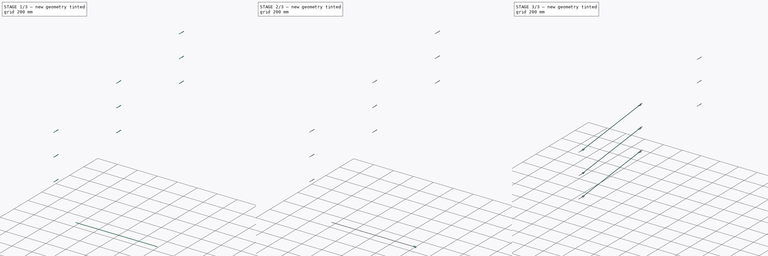
[diagram: build sequence overview — one tinted view per stage of 3, left to right]
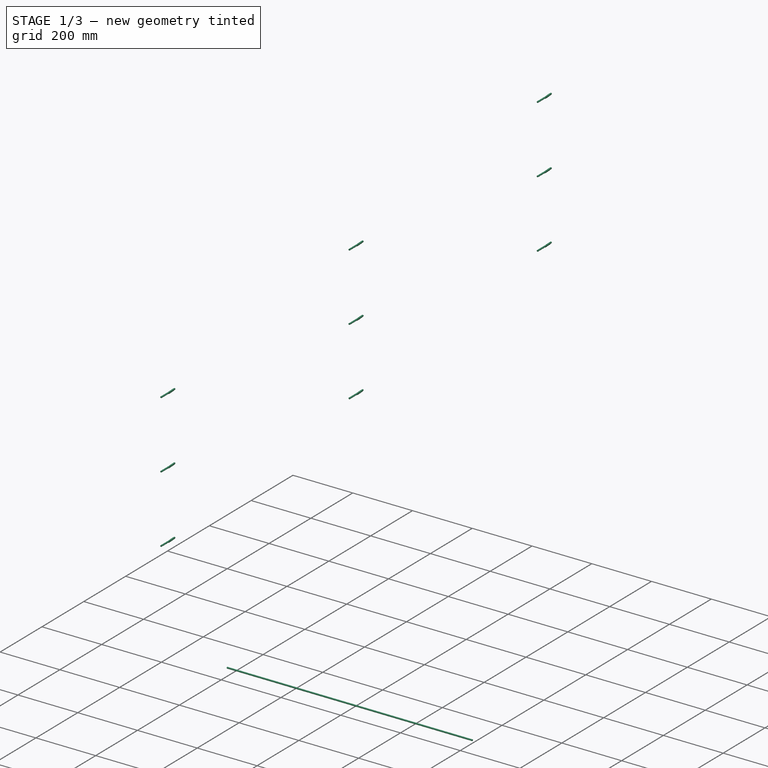
[diagram: stage 1 of 3 — iso view after this stage's code; geometry added in this stage tinted green]
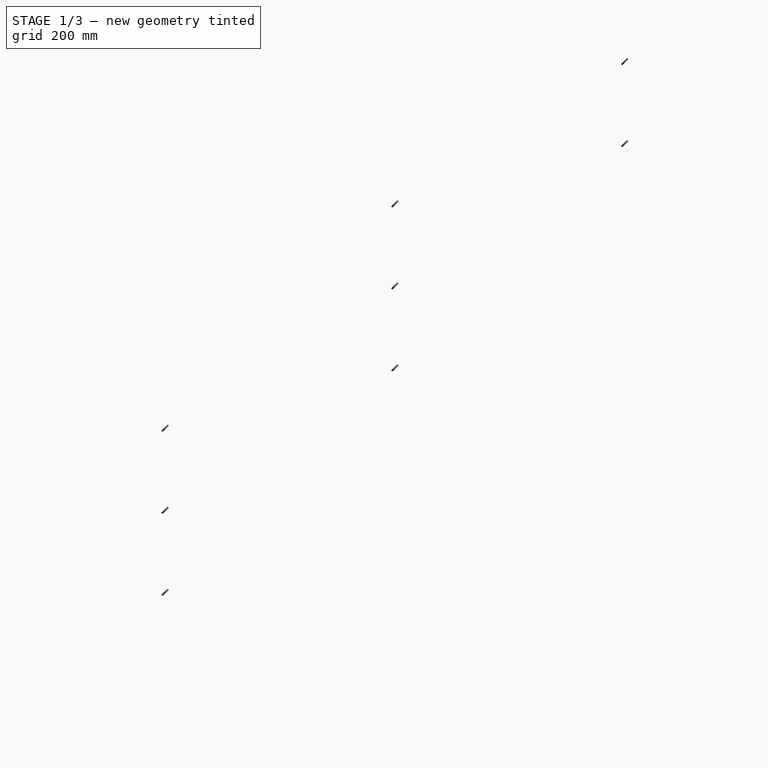
[diagram: stage 1 of 3 — front view after this stage's code; geometry added in this stage tinted green]
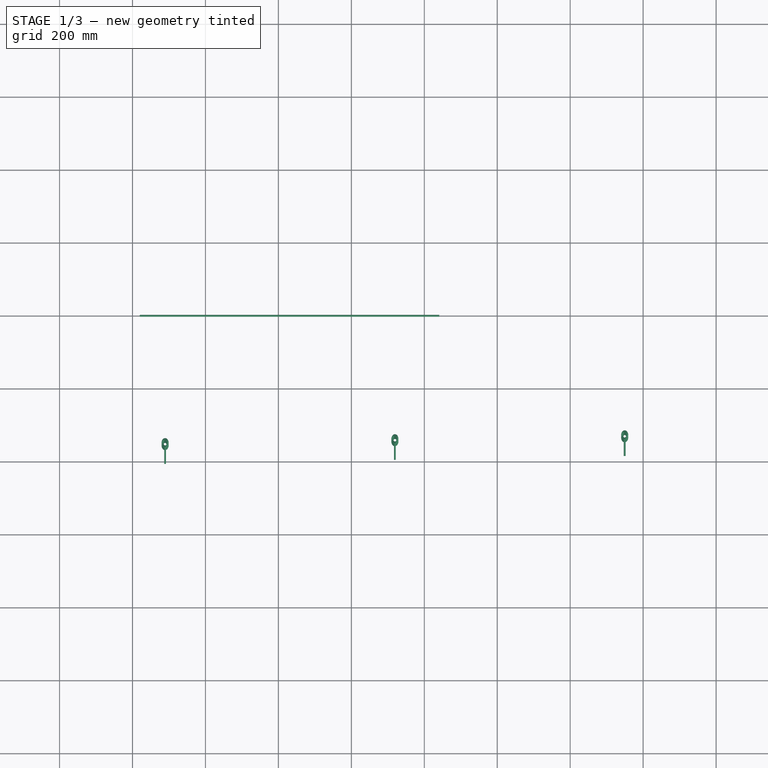
[diagram: stage 1 of 3 — top view after this stage's code; geometry added in this stage tinted green]
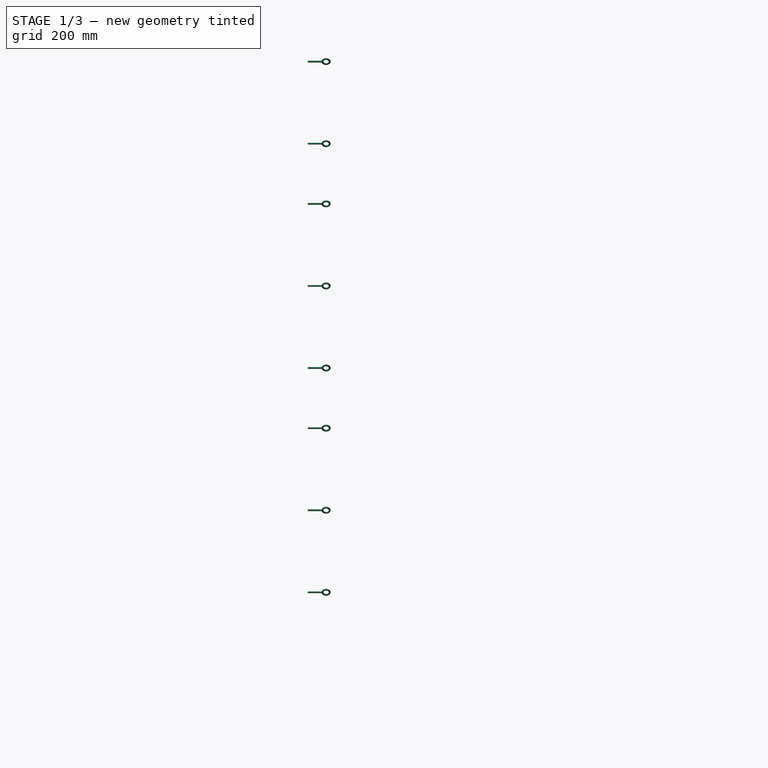
[diagram: stage 1 of 3 — right view after this stage's code; geometry added in this stage tinted green]
FCSTD DOCUMENT  (FreeCAD 0.17R10993 (Git))
Label: ropes
License: All rights reserved
LicenseURL: http://en.wikipedia.org/wiki/All_rights_reserved
objects: Sketcher::SketchObject×3, Part::FeaturePython×3, Part::Feature×2, App::DocumentObjectGroup×2, Part::Sweep×1, Part::Extrusion×1, Part::Compound×1
note: 11 computed .brp shape members not serialized (recipe doc carries the construction recipe); baked Part::Feature solids carry a one-line shape summary decoded from their .brp

FEATURE [Part::Extrusion] Extrude
  Base = -> Sketch
  Dir = (1,0,0)
  DirMode = 0
  FaceMakerClass = Part::FaceMakerBullseye
  LengthFwd = 821
  LengthRev = 0
  Solid = true
  Symmetric = false
  expr: Dir.x = 1
FEATURE [Part::FeaturePython] railing_eyelet_01  # a2plus imported part (geometry in sourceFile) (typed FeaturePython)
  fixedPosition = true
  sourceFile = railing_eyelet.fcstd
  timeLastImport = 1.49443e+09
  updateColors = true
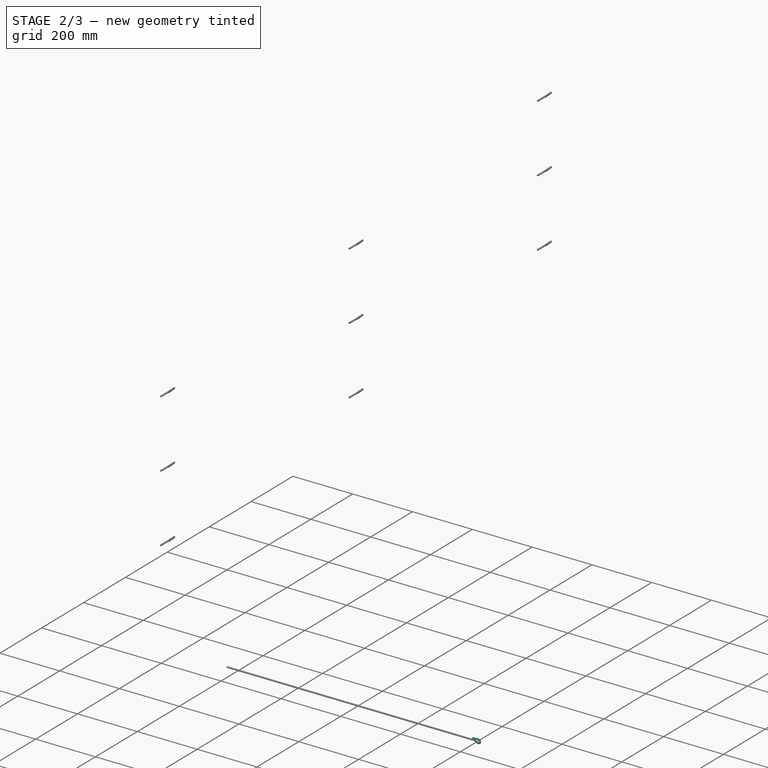
[diagram: stage 2 of 3 — iso view after this stage's code; geometry added in this stage tinted green]
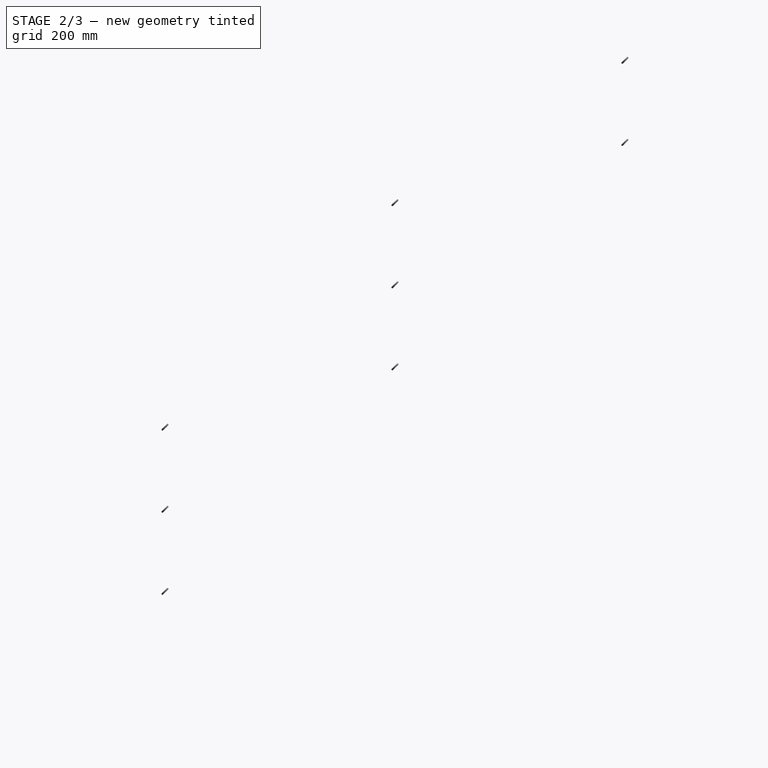
[diagram: stage 2 of 3 — front view after this stage's code; geometry added in this stage tinted green]
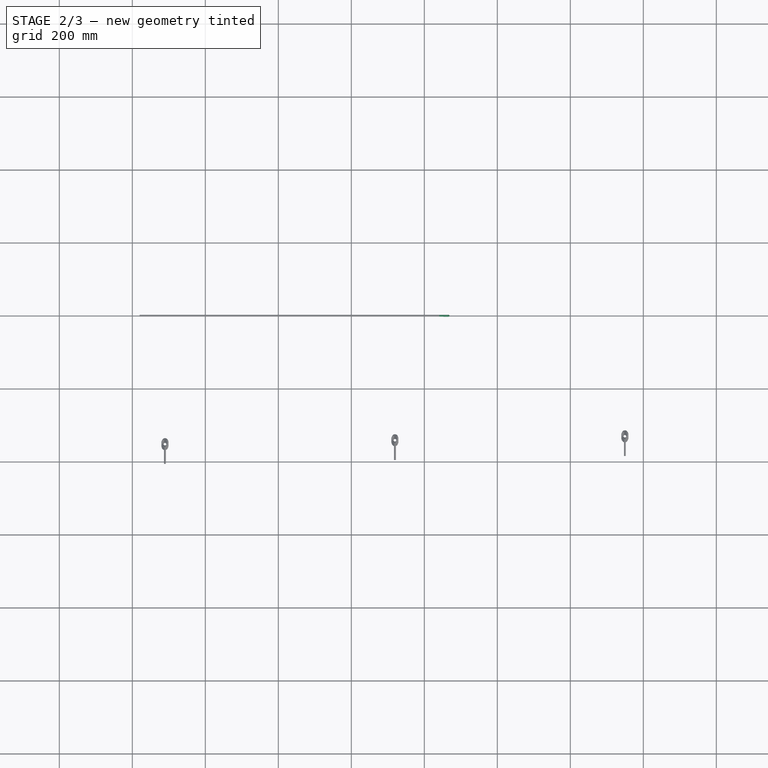
[diagram: stage 2 of 3 — top view after this stage's code; geometry added in this stage tinted green]
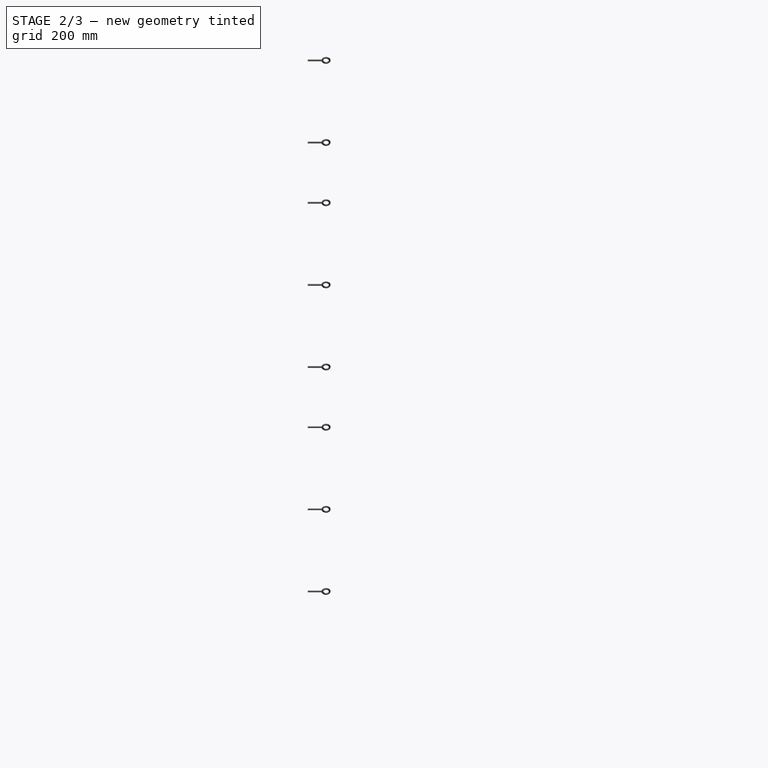
[diagram: stage 2 of 3 — right view after this stage's code; geometry added in this stage tinted green]
FEATURE [Sketcher::SketchObject] Sketch001
  Placement = pos=(20,0,0) rot=(0,-1,0;1.5708rad)
  sketch-geometry (1):
    g0: Circle CenterX=5 CenterY=0 CenterZ=0 NormalX=0 NormalY=0 NormalZ=1 Radius=2.5
  constraints (3):
    c: PointOnObject(g0,g-1)
    c: DistanceX(g-1,g0) = 5
    c: Radius(g0) = 2.5
FEATURE [Sketcher::SketchObject] Sketch
  Placement = pos=(20,0,0) rot=(0,-1,0;1.5708rad)
  sketch-geometry (1):
    g0: Circle CenterX=0 CenterY=0 CenterZ=0 NormalX=0 NormalY=0 NormalZ=1 Radius=2.5
  constraints (2):
    c: Radius(g0) = 2.5
    c: Coincident(g0,g-1)
FEATURE [Sketcher::SketchObject] Sketch002
  Placement = pos=(20,0,0) rot=(0.57735,-0.57735,0.57735;2.0944rad)
  sketch-geometry (43):
    g0: LineSegment [constr] StartX=3.375 StartY=25.8457 StartZ=0 EndX=-3.375 EndY=25.8457 EndZ=0
    g1: LineSegment [constr] StartX=-3.375 StartY=25.8457 StartZ=0 EndX=-6.75 EndY=20 EndZ=0
    g2: LineSegment [constr] StartX=-6.75 StartY=20 StartZ=0 EndX=-3.375 EndY=14.1543 EndZ=0
    g3: LineSegment [constr] StartX=-3.375 StartY=14.1543 StartZ=0 EndX=3.375 EndY=14.1543 EndZ=0
    g4: LineSegment [constr] StartX=3.375 StartY=14.1543 StartZ=0 EndX=6.75 EndY=20 EndZ=0
    g5: LineSegment [constr] StartX=6.75 StartY=20 StartZ=0 EndX=3.375 EndY=25.8457 EndZ=0
    g6: Circle [constr] CenterX=0 CenterY=20 CenterZ=0 NormalX=0 NormalY=0 NormalZ=1 Radius=6.75
    g7: Circle [constr] CenterX=-3.375 CenterY=14.1543 CenterZ=0 NormalX=0 NormalY=0 NormalZ=1 Radius=1
    g8: Circle [constr] CenterX=-6.75 CenterY=20 CenterZ=0 NormalX=0 NormalY=0 NormalZ=1 Radius=1
    g9: Circle [constr] CenterX=-3.375 CenterY=25.8457 CenterZ=0 NormalX=0 NormalY=0 NormalZ=1 Radius=1
    g10: Circle [constr] CenterX=3.375 CenterY=25.8457 CenterZ=0 NormalX=0 NormalY=0 NormalZ=1 Radius=1
    g11: Circle [constr] CenterX=6.75 CenterY=20 CenterZ=0 NormalX=0 NormalY=0 NormalZ=1 Radius=1
    g12: Circle [constr] CenterX=3.375 CenterY=14.1543 CenterZ=0 NormalX=0 NormalY=0 NormalZ=1 Radius=1
    g13: LineSegment StartX=0 StartY=5 StartZ=0 EndX=0 EndY=0 EndZ=0
    g14: LineSegment StartX=5 StartY=5 StartZ=0 EndX=5 EndY=0 EndZ=0
    g15: LineSegment [constr] StartX=0 StartY=5 StartZ=0 EndX=0 EndY=10 EndZ=0
    g16: LineSegment [constr] StartX=5 StartY=5 StartZ=0 EndX=5 EndY=10 EndZ=0
    g17: Circle [constr] CenterX=0 CenterY=10 CenterZ=0 NormalX=0 NormalY=0 NormalZ=1 Radius=3.32889e-07
    g18: Circle [constr] CenterX=-3.375 CenterY=14.1543 CenterZ=0 NormalX=0 NormalY=0 NormalZ=1 Radius=3.32889e-07
    g19: Circle [constr] CenterX=-6.75 CenterY=20 CenterZ=0 NormalX=0 NormalY=0 NormalZ=1 Radius=3.32889e-07
    g20: Circle [constr] CenterX=-3.375 CenterY=25.8457 CenterZ=0 NormalX=0 NormalY=0 NormalZ=1 Radius=3.32889e-07
    g21: Circle [constr] CenterX=3.375 CenterY=25.8457 CenterZ=0 NormalX=0 NormalY=0 NormalZ=1 Radius=3.32889e-07
    g22: Circle [constr] CenterX=6.75 CenterY=20 CenterZ=0 NormalX=0 NormalY=0 NormalZ=1 Radius=3.32889e-07
    g23: Circle [constr] CenterX=5 CenterY=10 CenterZ=0 NormalX=0 NormalY=0 NormalZ=1 Radius=3.32889e-07
    g24-g33: Circle [constr] x10 (B-spline internal-alignment scaffolding for g34; pole/knot coordinates omitted)
    g34: BSplineCurve PolesCount=10 KnotsCount=8 Degree=3 IsPeriodic=0
    g35-g42: GeomPoint [constr] x8 (B-spline internal-alignment scaffolding for g34; pole/knot coordinates omitted)
  constraints (57):
    c: Coincident(g0,g1)
    c: Coincident(g1,g2)
    c: Coincident(g2,g3)
    c: Coincident(g3,g4)
    c: Coincident(g4,g5)
    c: Coincident(g5,g0)
    c: Equal(g0, g1-g5) x5
    c: PointOnObject(g0,g6)
    c: PointOnObject(g1,g6)
    c: PointOnObject(g2,g6)
    c: PointOnObject(g4,g6)
    c: PointOnObject(g5,g6)
    c: Coincident(g7,g2)
    c: Coincident(g8,g1)
    c: Coincident(g9,g0)
    c: Coincident(g10,g0)
    c: Coincident(g11,g4)
    c: Coincident(g12,g3)
    c: DistanceX(g1,g4) = 13.5
    c: Vertical(g13)
    c: Vertical(g14)
    c: Vertical(g15)
    c: Vertical(g16)
    c: Coincident(g17,g15)
    c: Coincident(g18,g2)
    c: Coincident(g19,g1)
    c: Coincident(g20,g0)
    c: Coincident(g21,g0)
    c: Coincident(g22,g4)
    c: Coincident(g23,g16)
    c: Coincident(g15,g13)
    c: Coincident(g14,g16)
    c: Radius(g24) = 1
    c: Equal(g24, g25-g33) x9
    c: InternalAlignment(g24-g33 -> g34) x10
    c: InternalAlignment(g35-g42 -> g34) x8
    c: Coincident(g24,g13)
    c: Coincident(g25,g15)
    c: Coincident(g2,g26)
    c: Coincident(g27,g1)
    c: Coincident(g28,g0)
    c: Coincident(g29,g0)
    c: Coincident(g30,g4)
    c: Coincident(g32,g16)
    c: Coincident(g33,g14)
    c: DistanceY(g16,g16) = 5
    c: DistanceY(g-1,g6) = 20
    c: DistanceX(g37,g40) = 11.726
    c: PointOnObject(g6,g-2)
    c: Parallel(g3,g-1)
    c: DistanceX(g13,g14) = 5
    c: Coincident(g13,g-1)
    c: PointOnObject(g3,g6)
    c: PointOnObject(g14,g-1)
    c: Equal(g13,g14)
    c: Equal(g16,g15)
    c: DistanceY(g14,g14) = 5
FEATURE [Part::Sweep] Sweep
  Frenet = false
  Sections = -> [Sketch001,Sketch]
  Solid = true
  Spine = -> Sketch002 [Edge3,Edge2,Edge1]
  Transition = 1
  expr: Placement.Rotation.Axis.z = 1
FEATURE [Part::FeaturePython] Component  label="Sweep001"  # WARN: FeaturePython — macro-defined, semantics opaque (R4)
  CloneOf = -> Sweep
  HorizontalArea = 0
  MoveWithHost = false
  PerimeterLength = 0
  Placement = pos=(861,0,0) rot=(0,0,1;3.14159rad)
  Role = 0
  VerticalArea = 0
  expr: Placement.Base.z = 0
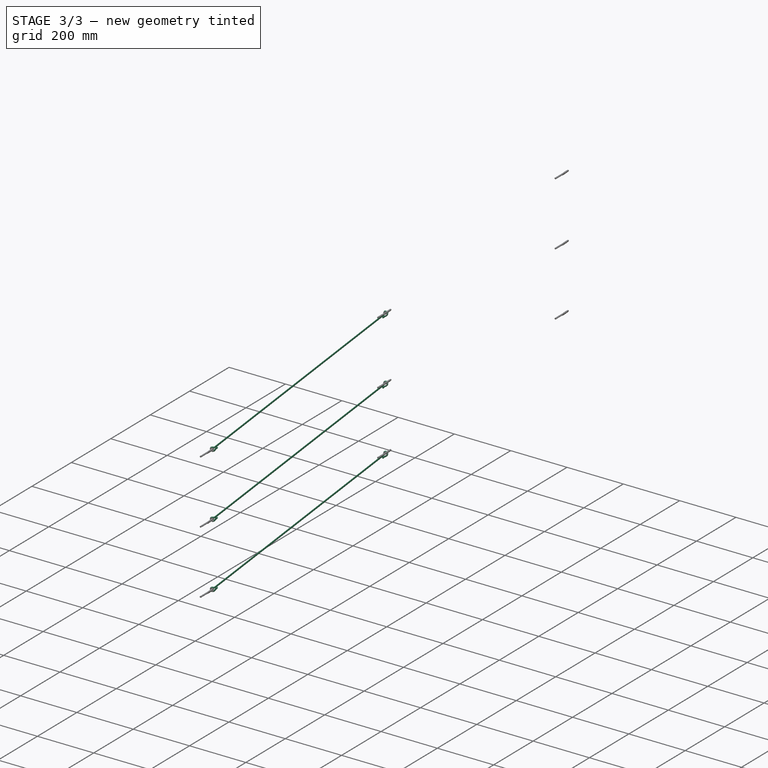
[diagram: stage 3 of 3 — iso view after this stage's code; geometry added in this stage tinted green]
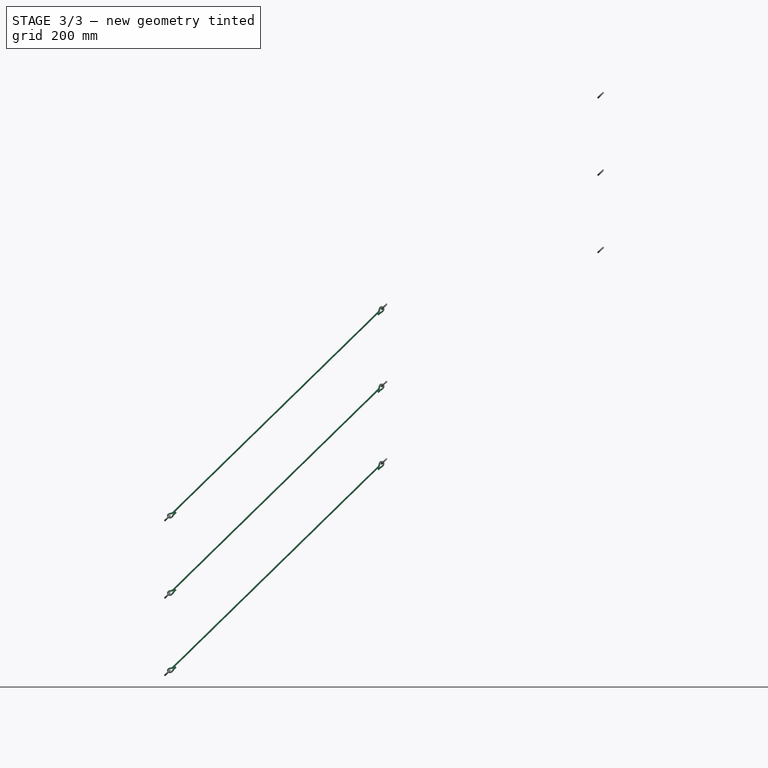
[diagram: stage 3 of 3 — front view after this stage's code; geometry added in this stage tinted green]
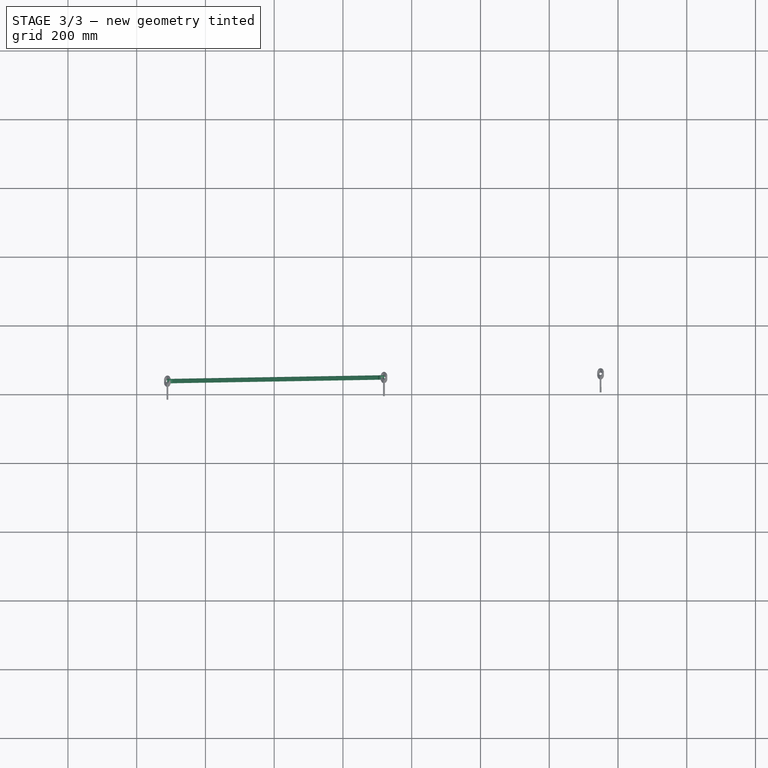
[diagram: stage 3 of 3 — top view after this stage's code; geometry added in this stage tinted green]
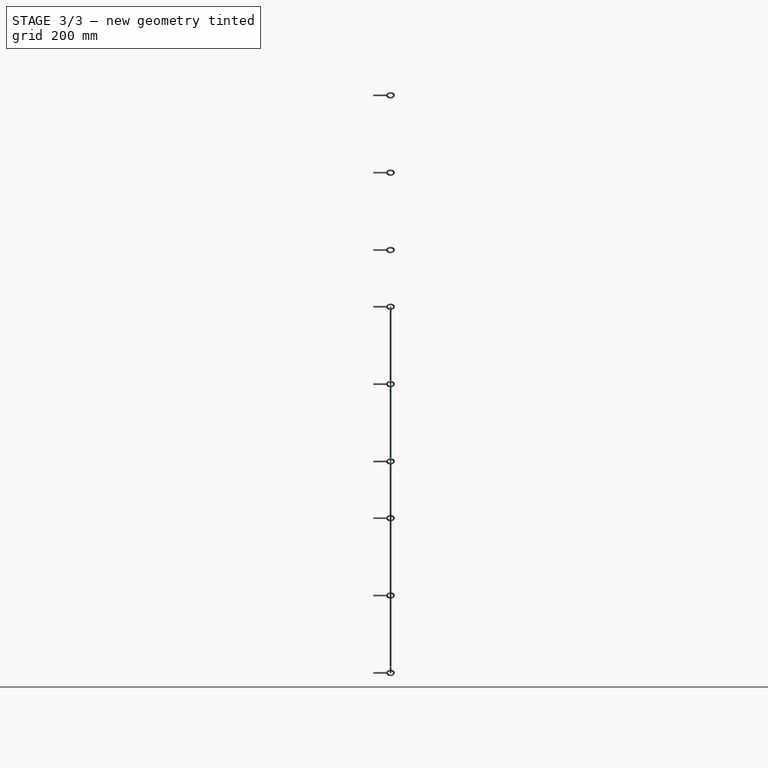
[diagram: stage 3 of 3 — right view after this stage's code; geometry added in this stage tinted green]
FEATURE [Part::Compound] Compound
  Links = -> [Sweep,Component,Extrude]
  Placement = pos=(96.4118,-365,551.925) rot=(0.926168,0,0.37711;3.14159rad)
FEATURE [Part::Feature] railing_eyelet_01_cs
  shape: bbox 1279 x 2e-06 x 1699 mm, 0 faces, 0 solids (baked)
FEATURE [Part::Feature] railing_eyelet_01_cs001
  shape: bbox 1279 x 2e-06 x 1699 mm, 0 faces, 0 solids (baked)
FEATURE [App::DocumentObjectGroup] Group  label="utilities"
  Group = -> [Sketch002,railing_eyelet_01_cs001,railing_eyelet_01_cs]
FEATURE [Part::FeaturePython] Array  # Draft array (typed FeaturePython)
  Angle = 360
  ArrayType = 0
  Axis = (0,0,1)
  Base = -> Compound
  Center = (0,0,0)
  Fuse = false
  IntervalAxis = (0,0,0)
  IntervalX = (630,0,615)
  IntervalY = (0,0,225)
  IntervalZ = (0,0,0)
  NumberPolar = 1
  NumberX = 1
  NumberY = 3
  NumberZ = 1
FEATURE [App::DocumentObjectGroup] Group001  label="ref"
  Group = -> [railing_eyelet_01]
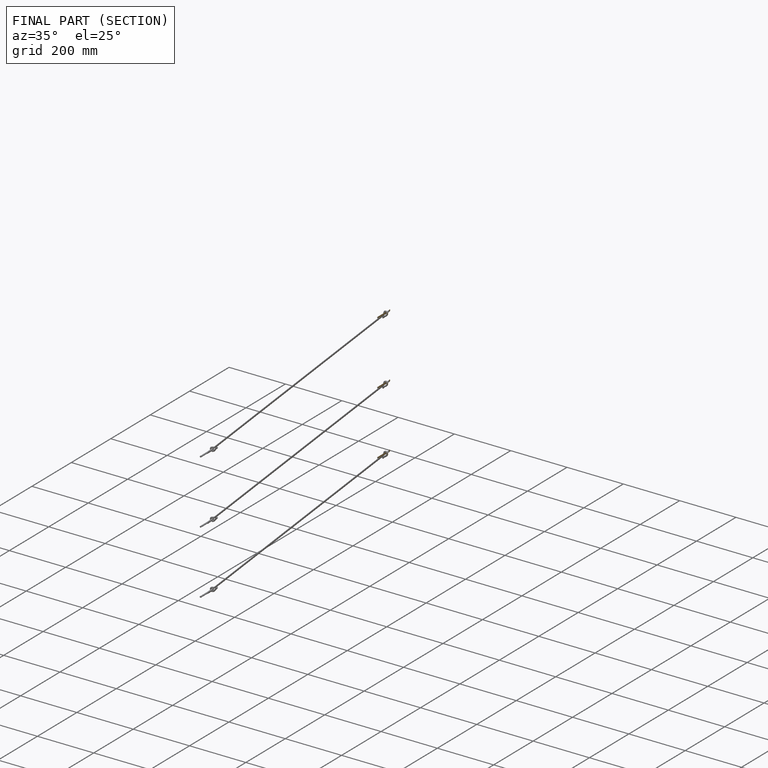
[diagram: finished part — half-section view (interior)]
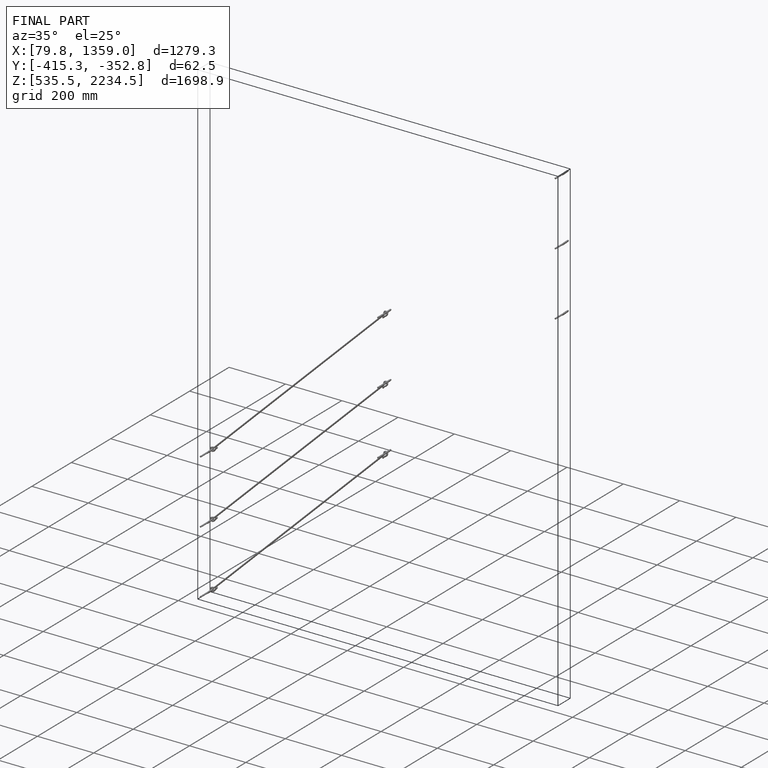
[diagram: finished part — iso view with bounding-box wireframe]
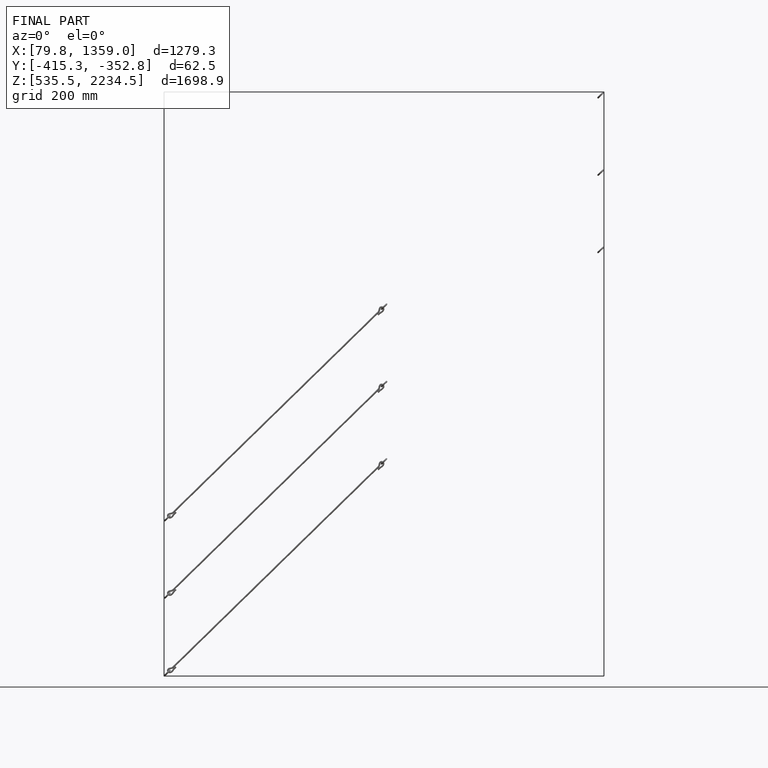
[diagram: finished part — front view with bounding-box wireframe]
